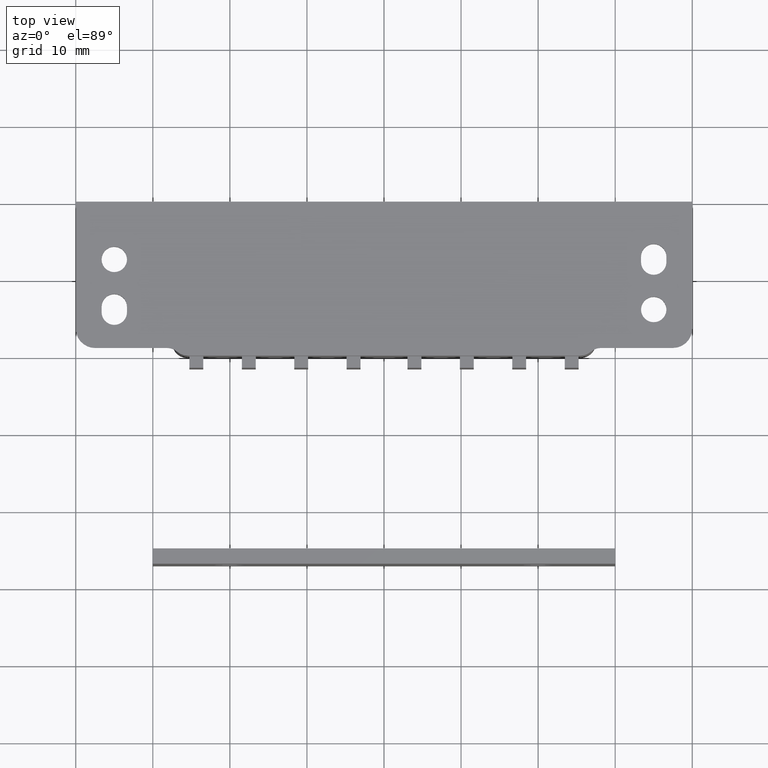
[diagram: clean part render]
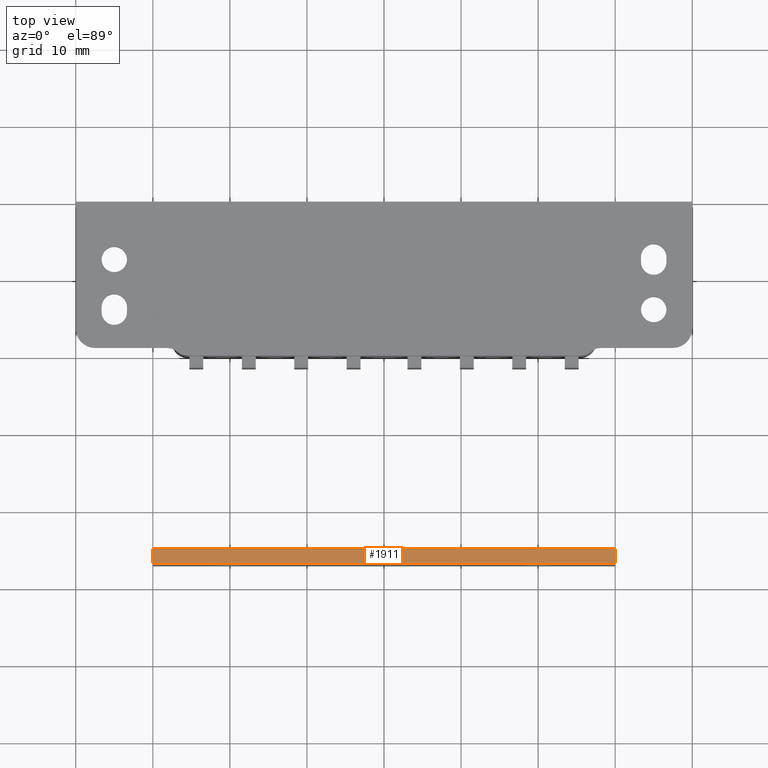
[diagram: same view with one face highlighted and labeled with its STEP entity id]
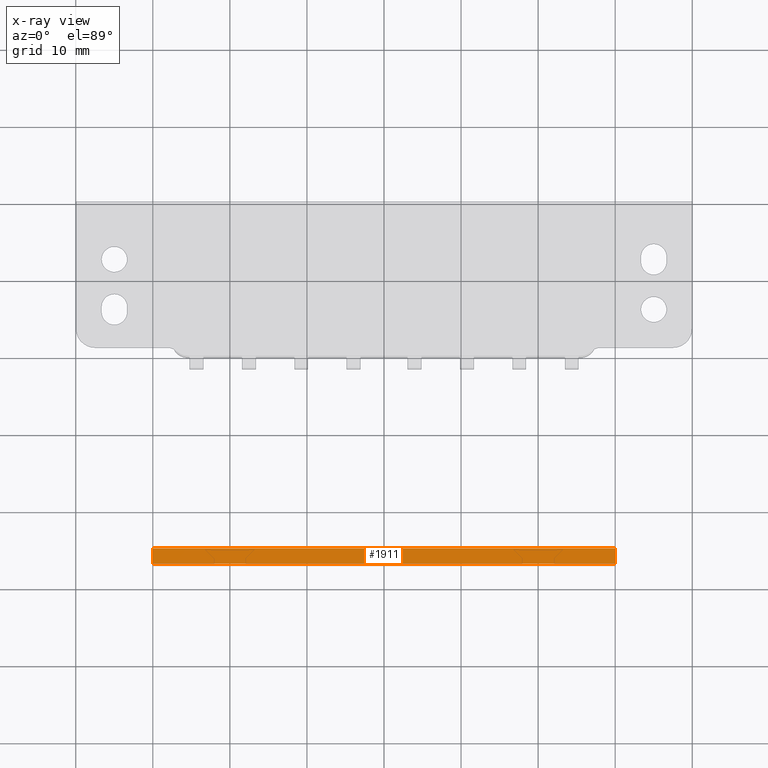
[diagram: x-ray of the same camera — body ghosted, the highlighted face saturated]
A machine part, top view. The second image highlights one B-rep face of the part: STEP entity #1911.
The next image is the same camera in x-ray: the body ghosted, the highlighted face saturated — about 0% of this face is hidden behind the body in this view.
In plain terms, the highlighted face is a freeform B-spline surface patch.
Its self-contained STEP definition (entity closure, byte-faithful):
#1777=CARTESIAN_POINT('',(30.0,-45.0,9.500000000018700));
#1778=VERTEX_POINT('',#1777);
#1779=CARTESIAN_POINT('',(-30.0,-45.0,9.500000000018810));
#1780=VERTEX_POINT('',#1779);
#1781=CARTESIAN_POINT('',(30.0,-45.0,9.500000000018700));
#1782=CARTESIAN_POINT('',(-30.0,-45.0,9.500000000018810));
#1783=QUASI_UNIFORM_CURVE('',1,(#1781,#1782),.UNSPECIFIED.,.F.,.U.);
#1784=EDGE_CURVE('',#1778,#1780,#1783,.T.);
#1830=CARTESIAN_POINT('',(30.0,-47.0,9.500000000018700));
#1831=VERTEX_POINT('',#1830);
#1832=CARTESIAN_POINT('',(30.0,-47.0,9.500000000018700));
#1833=CARTESIAN_POINT('',(30.0,-45.0,9.500000000018700));
#1834=QUASI_UNIFORM_CURVE('',1,(#1832,#1833),.UNSPECIFIED.,.F.,.U.);
#1835=EDGE_CURVE('',#1831,#1778,#1834,.T.);
#1881=CARTESIAN_POINT('',(-30.0,-47.0,9.500000000018810));
#1882=VERTEX_POINT('',#1881);
#1888=CARTESIAN_POINT('',(-30.0,-47.0,9.500000000018810));
#1889=CARTESIAN_POINT('',(-30.0,-45.0,9.500000000018810));
#1890=QUASI_UNIFORM_CURVE('',1,(#1888,#1889),.UNSPECIFIED.,.F.,.U.);
#1891=EDGE_CURVE('',#1882,#1780,#1890,.T.);
#1896=CARTESIAN_POINT('',(32.996999883708362,-47.099899996123611,9.500000000018810));
#1897=CARTESIAN_POINT('',(-32.997001493033771,-47.099899996123611,9.500000000018810));
#1898=CARTESIAN_POINT('',(32.996999883708362,-44.900099950232210,9.500000000018810));
#1899=CARTESIAN_POINT('',(-32.997001493033771,-44.900099950232210,9.500000000018810));
#1900=B_SPLINE_SURFACE_WITH_KNOTS('',1,1,((#1896,#1898),(#1897,#1899)),.UNSPECIFIED.,.F.,.F.,.U.,(2,2),(2,2),(0.0,65.994001376742119),(0.0,2.199800045891404),.UNSPECIFIED.);
#1901=ORIENTED_EDGE('',*,*,#1784,.T.);
#1902=ORIENTED_EDGE('',*,*,#1891,.F.);
#1903=CARTESIAN_POINT('',(30.0,-47.0,9.500000000018700));
#1904=CARTESIAN_POINT('',(-30.0,-47.0,9.500000000018810));
#1905=QUASI_UNIFORM_CURVE('',1,(#1903,#1904),.UNSPECIFIED.,.F.,.U.);
#1906=EDGE_CURVE('',#1831,#1882,#1905,.T.);
#1907=ORIENTED_EDGE('',*,*,#1906,.F.);
#1908=ORIENTED_EDGE('',*,*,#1835,.T.);
#1909=EDGE_LOOP('',(#1901,#1902,#1907,#1908));
#1910=FACE_OUTER_BOUND('',#1909,.T.);
#1911=ADVANCED_FACE('',(#1910),#1900,.F.);